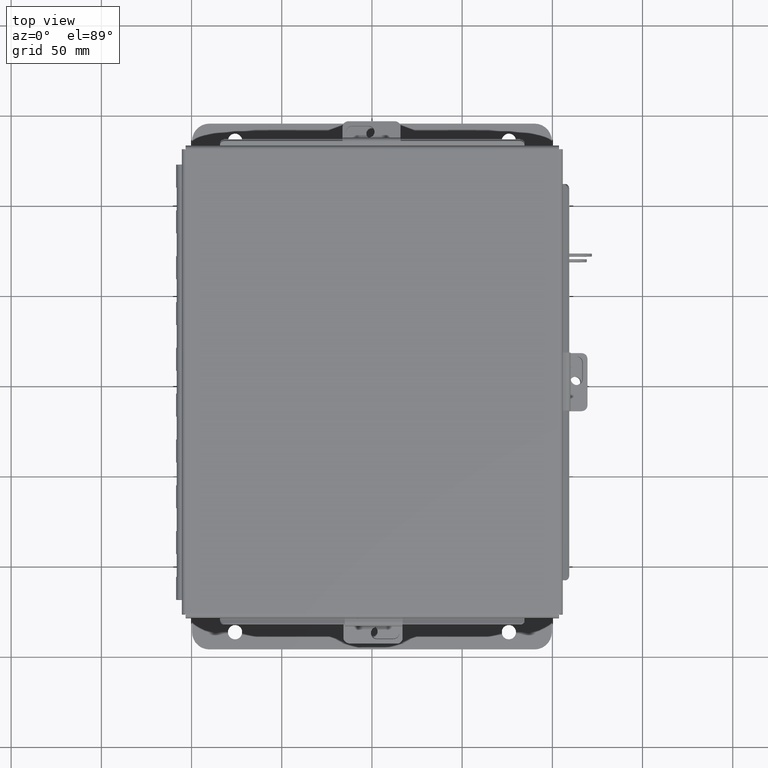
[diagram: clean part render]
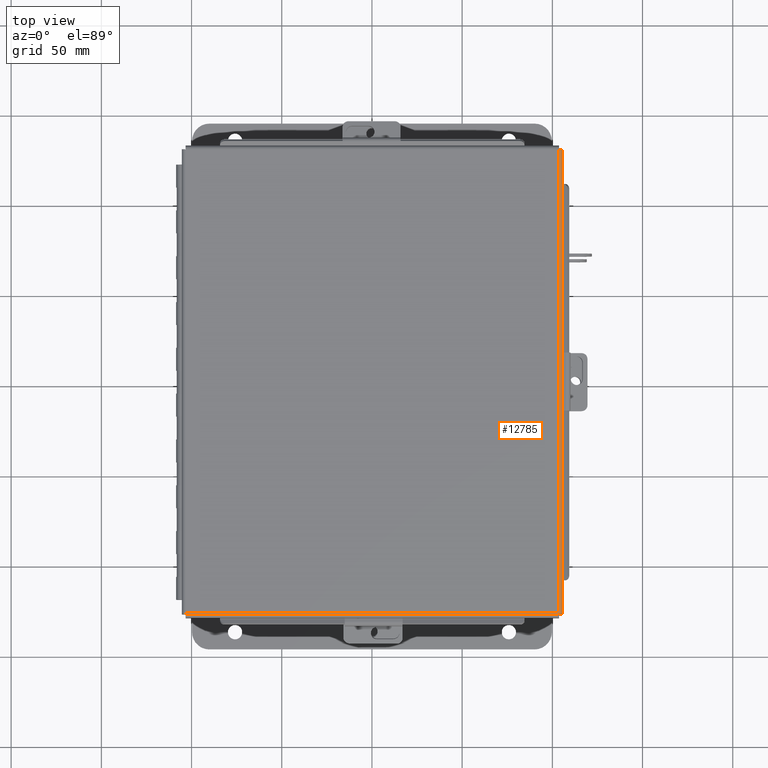
[diagram: same view with one face highlighted and labeled with its STEP entity id]
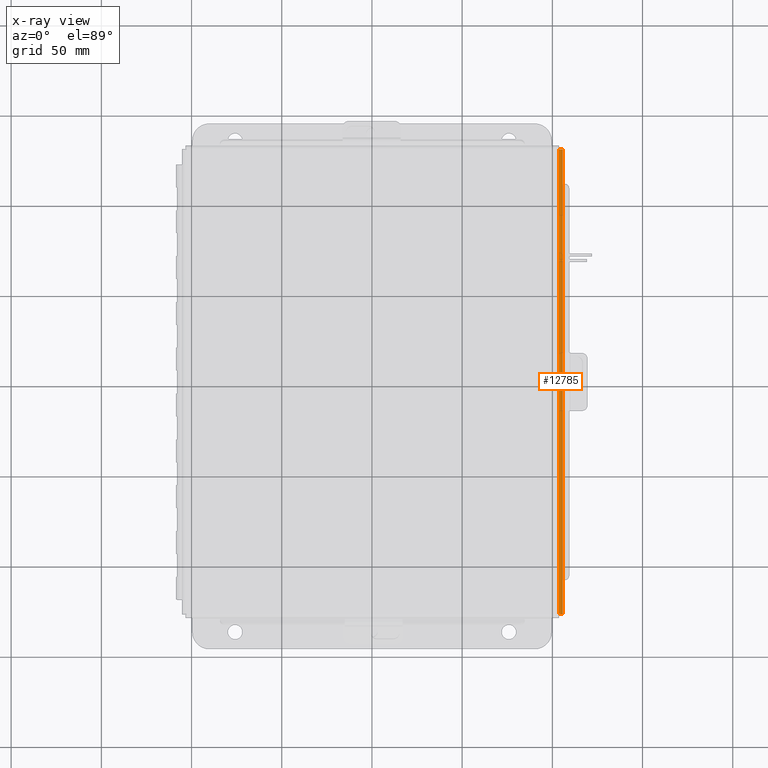
[diagram: x-ray of the same camera — body ghosted, the highlighted face saturated]
A machine part, top view. The second image highlights one B-rep face of the part: STEP entity #12785.
The next image is the same camera in x-ray: the body ghosted, the highlighted face saturated — about 0% of this face is hidden behind the body in this view.
In plain terms, the highlighted cylindrical surface (edge-blend (fillet) strip) has radius 2.2276 mm, axis along (-0, -1, -0).
Its self-contained STEP definition (entity closure, byte-faithful):
#125 = CARTESIAN_POINT ( 'NONE',  ( -4.156250000000000000, 5.073984854505789100, 0.001520096845007165400 ) ) ;
#224 = AXIS2_PLACEMENT_3D ( 'NONE', #14036, #10200, #5206 ) ;
#408 = ORIENTED_EDGE ( 'NONE', *, *, #8848, .F. ) ;
#1371 = CARTESIAN_POINT ( 'NONE',  ( -4.156250000000000000, -5.074478932188135600, 0.01299999999999986400 ) ) ;
#1616 = VERTEX_POINT ( 'NONE', #14946 ) ;
#2639 = CARTESIAN_POINT ( 'NONE',  ( -4.080029903154993100, 5.069044077682344000, -0.07469999999999994700 ) ) ;
#3250 = EDGE_CURVE ( 'NONE', #5959, #4069, #12061, .T. ) ;
#3444 = LINE ( 'NONE', #13626, #9814 ) ;
#3921 = CARTESIAN_POINT ( 'NONE',  ( -4.145181066258667900, -5.072502621458756500, -0.03116738457852794700 ) ) ;
#4067 = B_SPLINE_CURVE_WITH_KNOTS ( 'NONE', 3,
 ( #14028, #2639, #12787, #5204, #14085, #6496, #15359, #7769, #125, #9055 ),
 .UNSPECIFIED., .F., .F.,
 ( 4, 2, 2, 2, 4 ),
 ( 0.0000000000000000000, 0.2500000000000000000, 0.5000000000000000000, 0.7500000000000000000, 1.000000000000000000 ),
 .UNSPECIFIED. ) ;
#4069 = VERTEX_POINT ( 'NONE', #16160 ) ;
#5204 = CARTESIAN_POINT ( 'NONE',  ( -4.112717384578524500, 5.070526310729376500, -0.06363106625866839200 ) ) ;
#5206 = DIRECTION ( 'NONE',  ( -1.000000000000000000, 0.0000000000000000000, -3.358350761880586900E-015 ) ) ;
#5207 = CARTESIAN_POINT ( 'NONE',  ( -4.122445747341799000, -5.071020388411722200, -0.05713078207832041800 ) ) ;
#5959 = VERTEX_POINT ( 'NONE', #12127 ) ;
#6496 = CARTESIAN_POINT ( 'NONE',  ( -4.138680782078320200, 5.072008543776410900, -0.04089574734180008400 ) ) ;
#6505 = CARTESIAN_POINT ( 'NONE',  ( -4.091505289458308600, -5.069538155364692300, -0.07241740374381125400 ) ) ;
#6587 = ORIENTED_EDGE ( 'NONE', *, *, #16004, .F. ) ;
#6711 = EDGE_CURVE ( 'NONE', #11878, #1616, #3444, .T. ) ;
#7312 = DIRECTION ( 'NONE',  ( -0.0000000000000000000, 1.000000000000000000, -0.0000000000000000000 ) ) ;
#7466 = B_SPLINE_CURVE_WITH_KNOTS ( 'NONE', 3,
 ( #1371, #10248, #11530, #3921, #12792, #5207, #14089, #6505, #15364, #7775 ),
 .UNSPECIFIED., .F., .F.,
 ( 4, 2, 2, 2, 4 ),
 ( 0.0000000000000000000, 0.2500000000000000000, 0.5000000000000000000, 0.7500000000000000000, 1.000000000000000000 ),
 .UNSPECIFIED. ) ;
#7769 = CARTESIAN_POINT ( 'NONE',  ( -4.153967403743810600, 5.073490776823446100, -0.009955289458308985400 ) ) ;
#7775 = CARTESIAN_POINT ( 'NONE',  ( -4.068549999999999200, -5.068550000000001000, -0.07469999999999994700 ) ) ;
#8718 = VECTOR ( 'NONE', #16388, 39.37007874015748100 ) ;
#8848 = EDGE_CURVE ( 'NONE', #11878, #5959, #7466, .T. ) ;
#9055 = CARTESIAN_POINT ( 'NONE',  ( -4.156250000000000000, 5.074478932188133800, 0.01299999999999985900 ) ) ;
#9517 = FACE_OUTER_BOUND ( 'NONE', #12520, .T. ) ;
#9814 = VECTOR ( 'NONE', #7312, 39.37007874015748100 ) ;
#10200 = DIRECTION ( 'NONE',  ( 0.0000000000000000000, -1.000000000000000000, 0.0000000000000000000 ) ) ;
#10248 = CARTESIAN_POINT ( 'NONE',  ( -4.156249999999999100, -5.073984854505790000, 0.001520096845007165000 ) ) ;
#10943 = CARTESIAN_POINT ( 'NONE',  ( -4.156250000000000000, -5.074478932188135600, 0.01299999999999986400 ) ) ;
#11530 = CARTESIAN_POINT ( 'NONE',  ( -4.153967403743812300, -5.073490776823446100, -0.009955289458308987100 ) ) ;
#11684 = ORIENTED_EDGE ( 'NONE', *, *, #3250, .F. ) ;
#11878 = VERTEX_POINT ( 'NONE', #10943 ) ;
#12061 = LINE ( 'NONE', #14462, #8718 ) ;
#12127 = CARTESIAN_POINT ( 'NONE',  ( -4.068549999999999200, -5.068550000000001000, -0.07469999999999994700 ) ) ;
#12520 = EDGE_LOOP ( 'NONE', ( #11684, #408, #14943, #6587 ) ) ;
#12785 = ADVANCED_FACE ( 'NONE', ( #9517 ), #15864, .T. ) ;
#12787 = CARTESIAN_POINT ( 'NONE',  ( -4.091505289458310400, 5.069538155364688800, -0.07241740374381124000 ) ) ;
#12792 = CARTESIAN_POINT ( 'NONE',  ( -4.138680782078320200, -5.072008543776413500, -0.04089574734180007700 ) ) ;
#13626 = CARTESIAN_POINT ( 'NONE',  ( -4.156250000000000000, 5.156249999999999100, 0.01299999999999986400 ) ) ;
#14028 = CARTESIAN_POINT ( 'NONE',  ( -4.068550000000000100, 5.068549999999998300, -0.07469999999999993300 ) ) ;
#14036 = CARTESIAN_POINT ( 'NONE',  ( -4.068549999999999200, -5.074478932188135600, 0.01300000000000015000 ) ) ;
#14085 = CARTESIAN_POINT ( 'NONE',  ( -4.122445747341799900, 5.071020388411720400, -0.05713078207832042500 ) ) ;
#14089 = CARTESIAN_POINT ( 'NONE',  ( -4.112717384578527200, -5.070526310729378300, -0.06363106625866842000 ) ) ;
#14462 = CARTESIAN_POINT ( 'NONE',  ( -4.068549999999999200, -5.074478932188135600, -0.07469999999999994700 ) ) ;
#14943 = ORIENTED_EDGE ( 'NONE', *, *, #6711, .T. ) ;
#14946 = CARTESIAN_POINT ( 'NONE',  ( -4.156250000000000000, 5.074478932188133800, 0.01299999999999985900 ) ) ;
#15359 = CARTESIAN_POINT ( 'NONE',  ( -4.145181066258668800, 5.072502621458755600, -0.03116738457852795100 ) ) ;
#15364 = CARTESIAN_POINT ( 'NONE',  ( -4.080029903154992300, -5.069044077682345800, -0.07469999999999994700 ) ) ;
#15864 = CYLINDRICAL_SURFACE ( 'NONE', #224, 0.08770000000000026400 ) ;
#16004 = EDGE_CURVE ( 'NONE', #4069, #1616, #4067, .T. ) ;
#16160 = CARTESIAN_POINT ( 'NONE',  ( -4.068550000000000100, 5.068549999999998300, -0.07469999999999993300 ) ) ;
#16388 = DIRECTION ( 'NONE',  ( -0.0000000000000000000, 1.000000000000000000, -0.0000000000000000000 ) ) ;